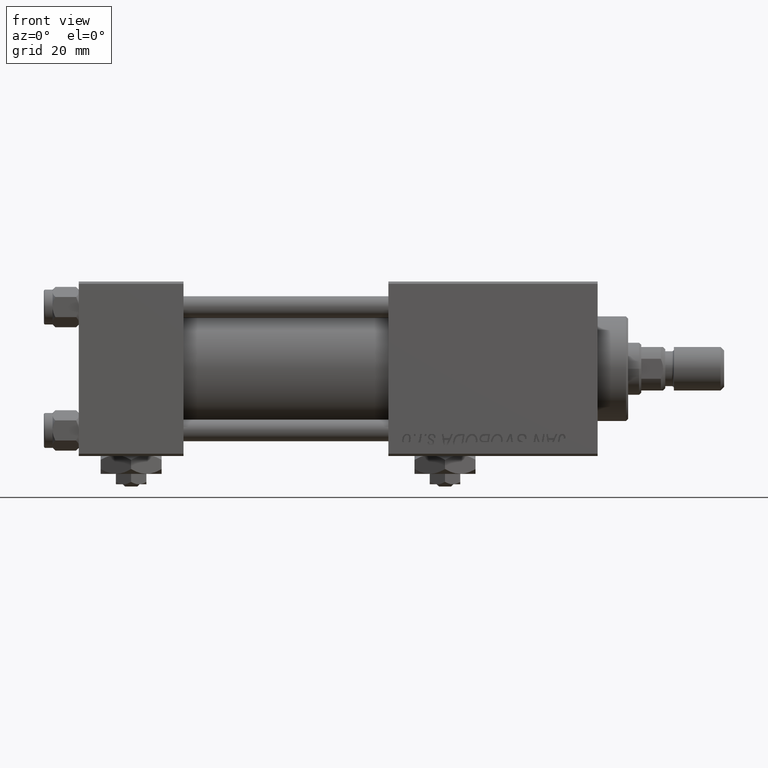
[diagram: clean part render]
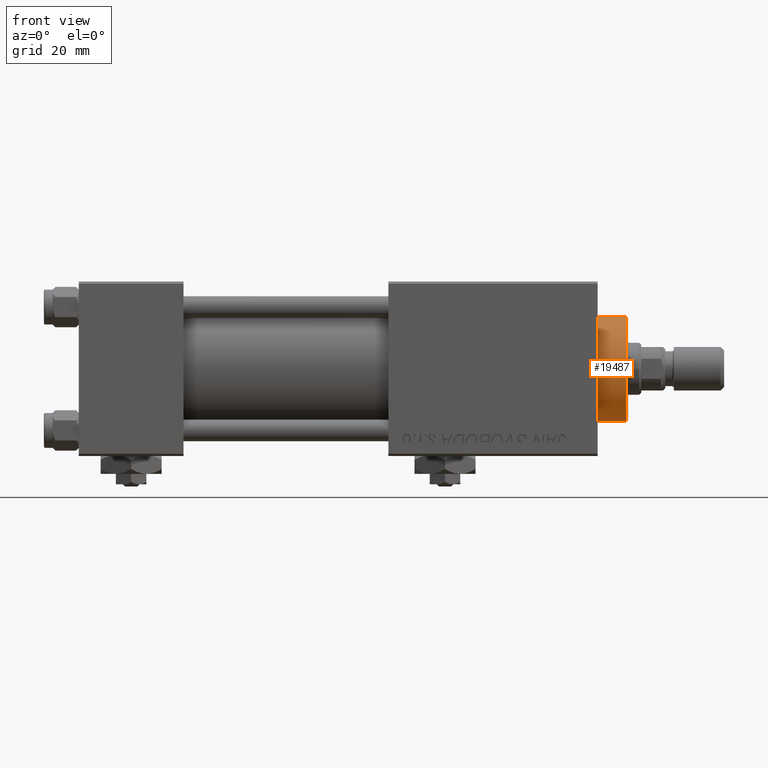
[diagram: same view with one face highlighted and labeled with its STEP entity id]
A machine part, front view. The second image highlights one B-rep face of the part: STEP entity #19487.
In plain terms, the highlighted cylindrical surface (partial cylindrical patch) has radius 12 mm, axis along (-1, -0, -0).
Its self-contained STEP definition (entity closure, byte-faithful):
#158 = ORIENTED_EDGE ( 'NONE', *, *, #3466, .F. ) ;
#575 = DIRECTION ( 'NONE',  ( 0.000000000000000000, 0.000000000000000000, 1.000000000000000000 ) ) ;
#1094 = CARTESIAN_POINT ( 'NONE',  ( 0.000000000000000000, 0.000000000000000000, 28.69999999999999929 ) ) ;
#3466 = EDGE_CURVE ( 'NONE', #50860, #24356, #6794, .T. ) ;
#4777 = CARTESIAN_POINT ( 'NONE',  ( 0.000000000000000000, 0.000000000000000000, 35.70000000000000284 ) ) ;
#5054 = CARTESIAN_POINT ( 'NONE',  ( 12.00000000000000178, 1.469576158976824144E-15, 35.19999999999999574 ) ) ;
#6794 = LINE ( 'NONE', #23022, #11598 ) ;
#8765 = FACE_OUTER_BOUND ( 'NONE', #34415, .T. ) ;
#11561 = EDGE_CURVE ( 'NONE', #50860, #44261, #24502, .T. ) ;
#11598 = VECTOR ( 'NONE', #47990, 1000.000000000000000 ) ;
#12695 = CARTESIAN_POINT ( 'NONE',  ( -12.00000000000000178, 0.000000000000000000, 28.69999999999999929 ) ) ;
#16489 = CARTESIAN_POINT ( 'NONE',  ( 12.00000000000000178, 1.469576158976824144E-15, 28.69999999999999929 ) ) ;
#16669 = ORIENTED_EDGE ( 'NONE', *, *, #11561, .T. ) ;
#17008 = DIRECTION ( 'NONE',  ( -1.000000000000000000, 0.000000000000000000, 0.000000000000000000 ) ) ;
#18175 = EDGE_CURVE ( 'NONE', #39495, #24356, #30698, .T. ) ;
#19487 = ADVANCED_FACE ( 'NONE', ( #8765 ), #24990, .T. ) ;
#20995 = DIRECTION ( 'NONE',  ( -0.000000000000000000, -0.000000000000000000, -1.000000000000000000 ) ) ;
#22255 = CARTESIAN_POINT ( 'NONE',  ( 0.000000000000000000, 0.000000000000000000, 35.19999999999999574 ) ) ;
#23022 = CARTESIAN_POINT ( 'NONE',  ( 12.00000000000000178, 1.469576158976824144E-15, 35.70000000000000284 ) ) ;
#23556 = CARTESIAN_POINT ( 'NONE',  ( -12.00000000000000178, 0.000000000000000000, 35.19999999999999574 ) ) ;
#23961 = CARTESIAN_POINT ( 'NONE',  ( -12.00000000000000178, 0.000000000000000000, 35.70000000000000284 ) ) ;
#24356 = VERTEX_POINT ( 'NONE', #16489 ) ;
#24502 = CIRCLE ( 'NONE', #25335, 12.00000000000000178 ) ;
#24990 = CYLINDRICAL_SURFACE ( 'NONE', #40900, 12.00000000000000178 ) ;
#25021 = EDGE_CURVE ( 'NONE', #44261, #39495, #39921, .T. ) ;
#25335 = AXIS2_PLACEMENT_3D ( 'NONE', #22255, #26756, #34209 ) ;
#26756 = DIRECTION ( 'NONE',  ( 0.000000000000000000, 0.000000000000000000, -1.000000000000000000 ) ) ;
#30698 = CIRCLE ( 'NONE', #43418, 12.00000000000000178 ) ;
#31248 = ORIENTED_EDGE ( 'NONE', *, *, #25021, .T. ) ;
#31691 = VECTOR ( 'NONE', #35394, 1000.000000000000000 ) ;
#33003 = DIRECTION ( 'NONE',  ( 1.000000000000000000, 0.000000000000000000, 0.000000000000000000 ) ) ;
#34209 = DIRECTION ( 'NONE',  ( 1.000000000000000000, 0.000000000000000000, 0.000000000000000000 ) ) ;
#34415 = EDGE_LOOP ( 'NONE', ( #158, #16669, #31248, #43147 ) ) ;
#35394 = DIRECTION ( 'NONE',  ( -0.000000000000000000, -0.000000000000000000, -1.000000000000000000 ) ) ;
#39495 = VERTEX_POINT ( 'NONE', #12695 ) ;
#39921 = LINE ( 'NONE', #23961, #31691 ) ;
#40900 = AXIS2_PLACEMENT_3D ( 'NONE', #4777, #20995, #17008 ) ;
#43147 = ORIENTED_EDGE ( 'NONE', *, *, #18175, .T. ) ;
#43418 = AXIS2_PLACEMENT_3D ( 'NONE', #1094, #575, #33003 ) ;
#44261 = VERTEX_POINT ( 'NONE', #23556 ) ;
#47990 = DIRECTION ( 'NONE',  ( -0.000000000000000000, -0.000000000000000000, -1.000000000000000000 ) ) ;
#50860 = VERTEX_POINT ( 'NONE', #5054 ) ;